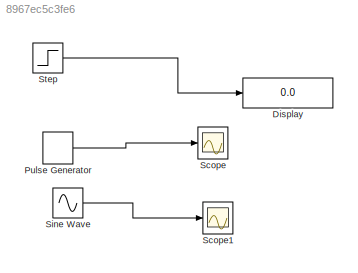
MODEL slx_8967ec5c3fe6
KIND model
CONFIG AbsTol = auto
CONFIG EnableMultiTasking = off
CONFIG FixedStep = auto
CONFIG MaxStep = auto
CONFIG MinStep = auto
CONFIG RelTol = 1e-3
CONFIG SampleTimeConstraint = Unconstrained
CONFIG SolverName = VariableStepAuto
CONFIG StartTime = 0.0
CONFIG StopTime = 10.0
BLOCK [Display] Display
  Decimation = 1
BLOCK [DiscretePulseGenerator] Pulse Generator
  Period = 10
  PulseWidth = 2
BLOCK [Scope] Scope
  ActiveDisplayYMaximum = 1.2345636317907445
  ActiveDisplayYMinimum = -0.1435613682092555
  Floating = off
  GraphicalSettings = {"AxesScalingProperties":{"AlignXAxis":"Center","AlignYAxis":"Center","AutoScaleXAxisLimits":false,"AxesScaling":"Manual","AxesScalingNumUpdates":10,"ExpandOnly":true,"ScaleAxesLimitsAtStop":false,"XAxisDataRange":100,"YAxisDataRange":80},"DisplayProperties":{"ColorOrder":["auto","auto","auto","auto","auto","auto","auto","auto","auto","auto","auto","auto","auto","auto","auto","auto","auto","auto",...<+1920ch>
  MultipleDisplayCache = [{"MaxYLimMag":1.125,"MaxYLimReal":1.2345636317907445,"MinYLimMag":0,"MinYLimReal":-0.1435613682092555,"PlotAsMagnitudePhase":false,"ShowGrid":true,"ShowLegend":false,"Title":"%<SignalLabel>","YLabel":""}]
  NumInputPorts = 1
  ScopeFrameLocation = window
  WasSavedAsWebScope = on
  WindowPosition = [708.000000,163.000000,560.000000,420.000000,]
BLOCK [Scope] Scope1
  ActiveDisplayYMaximum = 1.2697273091675052
  ActiveDisplayYMinimum = -0.177303940832495
  DataLoggingVariableName = ScopeData1
  Floating = off
  GraphicalSettings = {"AxesScalingProperties":{"AlignXAxis":"Center","AlignYAxis":"Center","AutoScaleXAxisLimits":false,"AxesScaling":"Manual","AxesScalingNumUpdates":10,"ExpandOnly":true,"ScaleAxesLimitsAtStop":false,"XAxisDataRange":100,"YAxisDataRange":80},"DisplayProperties":{"ColorOrder":["auto","auto","auto","auto","auto","auto","auto","auto","auto","auto","auto","auto","auto","auto","auto","auto","auto","auto",...<+1920ch>
  MultipleDisplayCache = [{"MaxYLimMag":1.125,"MaxYLimReal":1.2697273091675052,"MinYLimMag":0,"MinYLimReal":-0.177303940832495,"PlotAsMagnitudePhase":false,"ShowGrid":true,"ShowLegend":false,"Title":"%<SignalLabel>","YLabel":""}]
  NumInputPorts = 1
  ScopeFrameLocation = window
  WasSavedAsWebScope = on
  WindowPosition = [708.000000,163.000000,560.000000,420.000000,]
BLOCK [Sin] Sine Wave
  Frequency = 2
  Phase = 1
  SampleTime = 0.5
BLOCK [Step] Step
  After = 10
  SampleTime = 0
  Time = 2
LINE Pulse Generator:1 -> Scope:1
LINE Sine Wave:1 -> Scope1:1
LINE Step:1 -> Display:1
